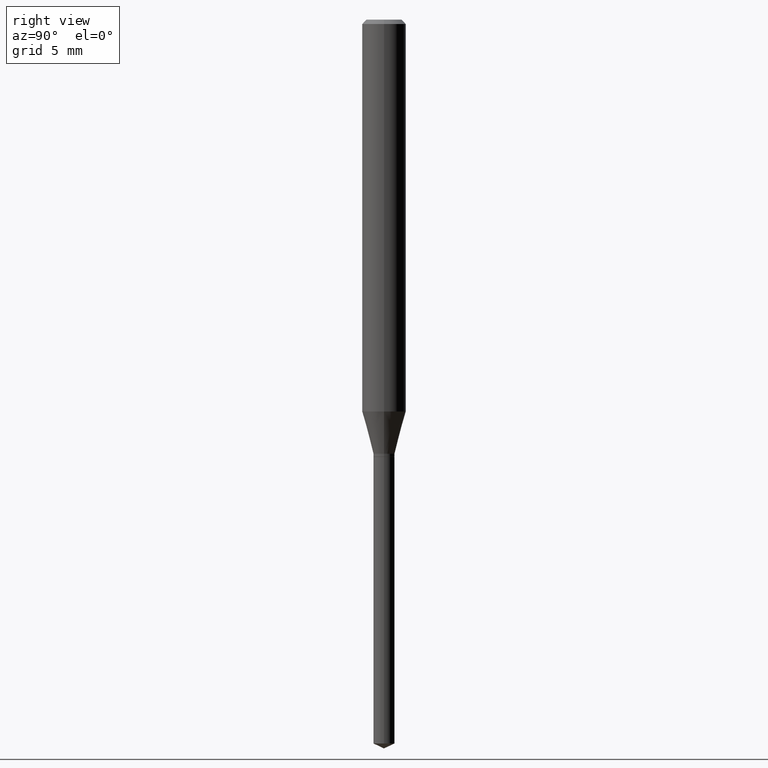
[diagram: clean part render]
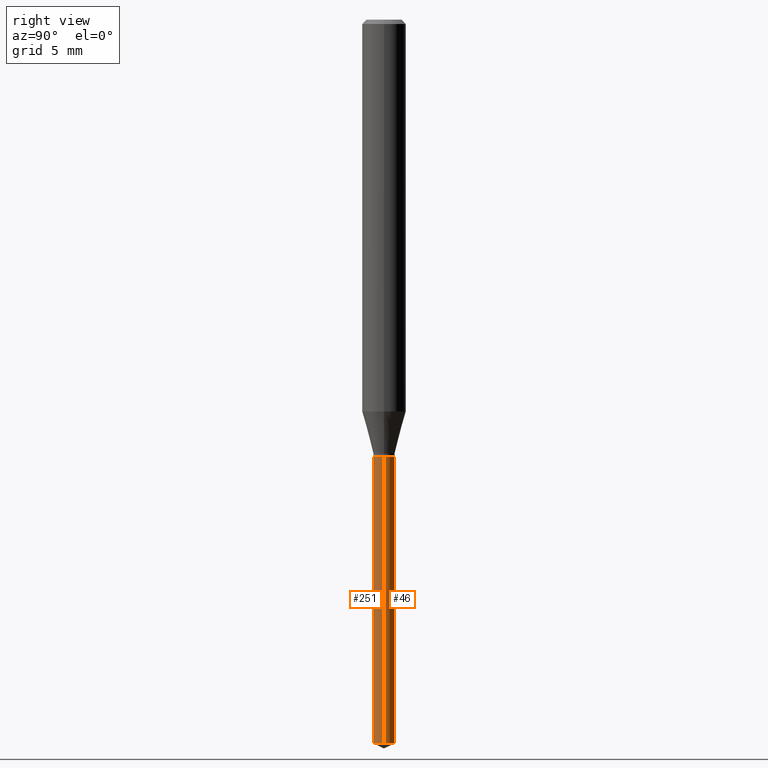
[diagram: same view with one multi-face feature highlighted, each face labeled with its STEP entity id]
A machine part, right view. The highlighted faces form ONE feature: a constant-radius fillet chain: 2 tangent blend faces with common blend radius 0.7252 mm. The faces share edges in the B-rep.
Their STEP definitions:
[1] entity #251 (Cylinder):
#8 = VERTEX_POINT ( 'NONE', #328 ) ;
#15 = CARTESIAN_POINT ( 'NONE',  ( 4.781348614218893479E-29, -6.826498632420079557E-15, -1.955186916359675120 ) ) ;
#17 = CIRCLE ( 'NONE', #37, 0.02854999999999999899 ) ;
#20 = ORIENTED_EDGE ( 'NONE', *, *, #305, .T. ) ;
#26 = AXIS2_PLACEMENT_3D ( 'NONE', #110, #347, #45 ) ;
#37 = AXIS2_PLACEMENT_3D ( 'NONE', #335, #146, #256 ) ;
#40 = EDGE_CURVE ( 'NONE', #231, #8, #325, .T. ) ;
#45 = DIRECTION ( 'NONE',  ( 1.000000000000000000, -6.982962677686259611E-15, 0.000000000000000000 ) ) ;
#48 = DIRECTION ( 'NONE',  ( -2.445468806185136877E-29, 3.491481338843145188E-15, 1.000000000000000000 ) ) ;
#110 = CARTESIAN_POINT ( 'NONE',  ( 2.888343206985264877E-29, -4.123788609307639024E-15, -1.181099999999999817 ) ) ;
#134 = EDGE_CURVE ( 'NONE', #226, #313, #17, .T. ) ;
#146 = DIRECTION ( 'NONE',  ( -2.445468806185136597E-29, 3.491481338843145583E-15, 1.000000000000000000 ) ) ;
#154 = CARTESIAN_POINT ( 'NONE',  ( -0.02854999999999999899, -5.272283669804350547E-15, -1.181099999999999817 ) ) ;
#156 = LINE ( 'NONE', #454, #281 ) ;
#162 = DIRECTION ( 'NONE',  ( 1.000000000000000000, -6.982962677686259611E-15, 0.000000000000000000 ) ) ;
#179 = VECTOR ( 'NONE', #432, 39.37007874015748143 ) ;
#219 = ORIENTED_EDGE ( 'NONE', *, *, #134, .F. ) ;
#226 = VERTEX_POINT ( 'NONE', #154 ) ;
#231 = VERTEX_POINT ( 'NONE', #309 ) ;
#251 = ADVANCED_FACE ( 'NONE', ( #423 ), #386, .T. ) ;
#256 = DIRECTION ( 'NONE',  ( 1.000000000000000000, -6.982962677686259611E-15, 0.000000000000000000 ) ) ;
#281 = VECTOR ( 'NONE', #48, 39.37007874015748143 ) ;
#305 = EDGE_CURVE ( 'NONE', #8, #313, #156, .T. ) ;
#309 = CARTESIAN_POINT ( 'NONE',  ( -0.02854999999999999205, -6.623638681360570419E-15, -1.955186916359675120 ) ) ;
#313 = VERTEX_POINT ( 'NONE', #344 ) ;
#319 = CARTESIAN_POINT ( 'NONE',  ( -0.02854999999999999899, -3.920928658248129886E-15, -1.181099999999999817 ) ) ;
#325 = CIRCLE ( 'NONE', #433, 0.02854999999999999899 ) ;
#328 = CARTESIAN_POINT ( 'NONE',  ( 0.02854999999999999205, -7.025862216868022365E-15, -1.955186916359675120 ) ) ;
#335 = CARTESIAN_POINT ( 'NONE',  ( 2.888343206985264316E-29, -4.123788609307638235E-15, -1.181099999999999817 ) ) ;
#344 = CARTESIAN_POINT ( 'NONE',  ( 0.02854999999999999899, -4.323152193755581043E-15, -1.181099999999999817 ) ) ;
#347 = DIRECTION ( 'NONE',  ( -2.445468806185136597E-29, 3.491481338843145583E-15, 1.000000000000000000 ) ) ;
#379 = ORIENTED_EDGE ( 'NONE', *, *, #40, .T. ) ;
#386 = CYLINDRICAL_SURFACE ( 'NONE', #26, 0.02854999999999999899 ) ;
#387 = DIRECTION ( 'NONE',  ( -2.445468806185136597E-29, 3.491481338843145583E-15, 1.000000000000000000 ) ) ;
#399 = ORIENTED_EDGE ( 'NONE', *, *, #414, .F. ) ;
#414 = EDGE_CURVE ( 'NONE', #231, #226, #429, .T. ) ;
#423 = FACE_OUTER_BOUND ( 'NONE', #451, .T. ) ;
#429 = LINE ( 'NONE', #319, #179 ) ;
#432 = DIRECTION ( 'NONE',  ( -2.445468806185136877E-29, 3.491481338843145188E-15, 1.000000000000000000 ) ) ;
#433 = AXIS2_PLACEMENT_3D ( 'NONE', #15, #387, #162 ) ;
#451 = EDGE_LOOP ( 'NONE', ( #399, #379, #20, #219 ) ) ;
#454 = CARTESIAN_POINT ( 'NONE',  ( 0.02854999999999999899, -4.323152193755581832E-15, -1.181099999999999817 ) ) ;
[2] entity #46 (Cylinder):
#8 = VERTEX_POINT ( 'NONE', #328 ) ;
#16 = CARTESIAN_POINT ( 'NONE',  ( 2.888343206985264877E-29, -4.123788609307639024E-15, -1.181099999999999817 ) ) ;
#46 = ADVANCED_FACE ( 'NONE', ( #282 ), #435, .T. ) ;
#47 = EDGE_LOOP ( 'NONE', ( #233, #411, #488, #381 ) ) ;
#48 = DIRECTION ( 'NONE',  ( -2.445468806185136877E-29, 3.491481338843145188E-15, 1.000000000000000000 ) ) ;
#51 = DIRECTION ( 'NONE',  ( 1.000000000000000000, -6.982962677686259611E-15, 0.000000000000000000 ) ) ;
#106 = CIRCLE ( 'NONE', #457, 0.02854999999999999899 ) ;
#125 = AXIS2_PLACEMENT_3D ( 'NONE', #165, #436, #317 ) ;
#128 = DIRECTION ( 'NONE',  ( -2.445468806185136597E-29, 3.491481338843145583E-15, 1.000000000000000000 ) ) ;
#154 = CARTESIAN_POINT ( 'NONE',  ( -0.02854999999999999899, -5.272283669804350547E-15, -1.181099999999999817 ) ) ;
#156 = LINE ( 'NONE', #454, #281 ) ;
#165 = CARTESIAN_POINT ( 'NONE',  ( 4.781348614218893479E-29, -6.826498632420079557E-15, -1.955186916359675120 ) ) ;
#179 = VECTOR ( 'NONE', #432, 39.37007874015748143 ) ;
#226 = VERTEX_POINT ( 'NONE', #154 ) ;
#231 = VERTEX_POINT ( 'NONE', #309 ) ;
#233 = ORIENTED_EDGE ( 'NONE', *, *, #474, .T. ) ;
#281 = VECTOR ( 'NONE', #48, 39.37007874015748143 ) ;
#282 = FACE_OUTER_BOUND ( 'NONE', #47, .T. ) ;
#291 = DIRECTION ( 'NONE',  ( -2.445468806185136597E-29, 3.491481338843145583E-15, 1.000000000000000000 ) ) ;
#305 = EDGE_CURVE ( 'NONE', #8, #313, #156, .T. ) ;
#309 = CARTESIAN_POINT ( 'NONE',  ( -0.02854999999999999205, -6.623638681360570419E-15, -1.955186916359675120 ) ) ;
#313 = VERTEX_POINT ( 'NONE', #344 ) ;
#317 = DIRECTION ( 'NONE',  ( 1.000000000000000000, -6.982962677686259611E-15, 0.000000000000000000 ) ) ;
#319 = CARTESIAN_POINT ( 'NONE',  ( -0.02854999999999999899, -3.920928658248129886E-15, -1.181099999999999817 ) ) ;
#328 = CARTESIAN_POINT ( 'NONE',  ( 0.02854999999999999205, -7.025862216868022365E-15, -1.955186916359675120 ) ) ;
#344 = CARTESIAN_POINT ( 'NONE',  ( 0.02854999999999999899, -4.323152193755581043E-15, -1.181099999999999817 ) ) ;
#381 = ORIENTED_EDGE ( 'NONE', *, *, #305, .F. ) ;
#398 = CARTESIAN_POINT ( 'NONE',  ( 2.888343206985264316E-29, -4.123788609307638235E-15, -1.181099999999999817 ) ) ;
#411 = ORIENTED_EDGE ( 'NONE', *, *, #414, .T. ) ;
#414 = EDGE_CURVE ( 'NONE', #231, #226, #429, .T. ) ;
#420 = CIRCLE ( 'NONE', #125, 0.02854999999999999899 ) ;
#427 = AXIS2_PLACEMENT_3D ( 'NONE', #16, #291, #476 ) ;
#429 = LINE ( 'NONE', #319, #179 ) ;
#432 = DIRECTION ( 'NONE',  ( -2.445468806185136877E-29, 3.491481338843145188E-15, 1.000000000000000000 ) ) ;
#435 = CYLINDRICAL_SURFACE ( 'NONE', #427, 0.02854999999999999899 ) ;
#436 = DIRECTION ( 'NONE',  ( -2.445468806185136597E-29, 3.491481338843145583E-15, 1.000000000000000000 ) ) ;
#442 = EDGE_CURVE ( 'NONE', #313, #226, #106, .T. ) ;
#454 = CARTESIAN_POINT ( 'NONE',  ( 0.02854999999999999899, -4.323152193755581832E-15, -1.181099999999999817 ) ) ;
#457 = AXIS2_PLACEMENT_3D ( 'NONE', #398, #128, #51 ) ;
#474 = EDGE_CURVE ( 'NONE', #8, #231, #420, .T. ) ;
#476 = DIRECTION ( 'NONE',  ( 1.000000000000000000, -6.982962677686259611E-15, 0.000000000000000000 ) ) ;
#488 = ORIENTED_EDGE ( 'NONE', *, *, #442, .F. ) ;